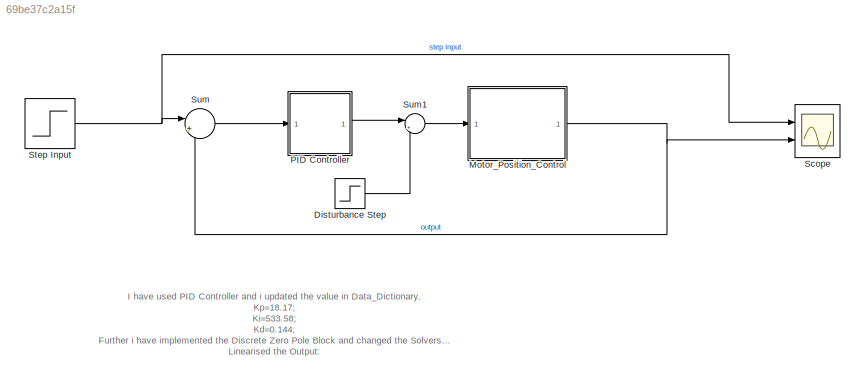
MODEL slx_69be37c2a15f
KIND model
CONFIG AbsTol = auto
CONFIG EnableMultiTasking = off
CONFIG FixedStep = auto
CONFIG MaxStep = auto
CONFIG MinStep = auto
CONFIG PreLoadFcn = J=3.2284E-6;\nb=3.5077E-6;\nK=0.0274;\nR=4;\nL=2.75E-6;\n
CONFIG RelTol = 1e-3
CONFIG SampleTimeConstraint = Unconstrained
CONFIG SolverName = ode15s
CONFIG StartTime = 0.0
CONFIG StopTime = 0.2
BLOCK [Step]  Step Input
  SampleTime = 0
  Time = 0
BLOCK [Step] Disturbance Step
  SampleTime = 0
  Time = 0.01
BLOCK [ModelReference] Motor_Position_Control
  ModelNameDialog = Motor_Position_Control0
  ModelReferenceVersion = 1.7
  Ports = [1, 1]
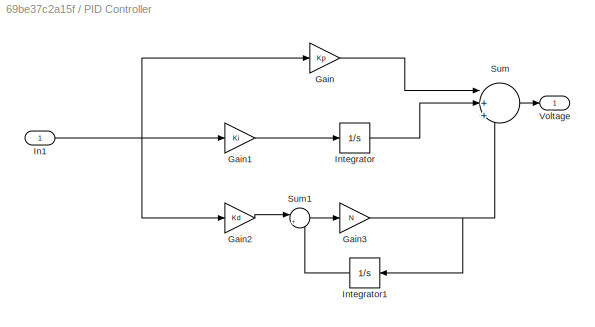
BLOCK [SubSystem] PID Controller
  Ports = [1, 1]
  RequestExecContextInheritance = off
BLOCK [Gain] PID Controller/Gain
  Gain = Kp
BLOCK [Gain] PID Controller/Gain1
  Gain = Ki
BLOCK [Gain] PID Controller/Gain2
  Gain = Kd
BLOCK [Gain] PID Controller/Gain3
  Gain = N
BLOCK [Inport] PID Controller/In1
BLOCK [Integrator] PID Controller/Integrator
  Ports = [1, 1]
BLOCK [Integrator] PID Controller/Integrator1
  Ports = [1, 1]
BLOCK [Sum] PID Controller/Sum
  Inputs = |+++
  Ports = [3, 1]
BLOCK [Sum] PID Controller/Sum1
  Inputs = |+-
  Ports = [2, 1]
BLOCK [Outport] PID Controller/Voltage
BLOCK [Scope] Scope
  Floating = off
  NumInputPorts = 2
  Ports = [2]
  ScopeSpecificationString = Simulink.scopes.TimeScopeBlockCfg('CurrentConfiguration', extmgr.ConfigurationSet(extmgr.Configuration('Core','General UI',true),extmgr.Configuration('Core','Source UI',true),extmgr.Configuration('Sources','WiredSimulink',true,'DataLoggingSaveFormat','Array','DataLoggingLimitDataPoints',true,'DataLoggingDecimation','1'),extmgr.Configuration('Visuals','Time Domain',true,'SerializedDisplays',{struct...<+2407ch>
BLOCK [Sum] Sum
  Inputs = |+-
  Ports = [2, 1]
BLOCK [Sum] Sum1
  Inputs = |++
  Ports = [2, 1]
ANNOTATION (root): I have used PID Controller and i updated the value in Data_Dictionary. Kp=18.17; Ki=533.58; Kd=0.144; Further i have implemented the Discrete Zero Pole Block and changed the Solvers to ode15s Linearised the Output: Settling Time is Less than 0.040, Overshoot is less than 16% No Seady state Error,even in presence of step input.
NET  Step Input:1 -> Scope:1, Sum:1
LINE Disturbance Step:1 -> Sum1:2
NET Motor_Position_Control:1 -> Scope:2, Sum:2
LINE PID Controller/Gain1:1 -> PID Controller/Integrator:1
LINE PID Controller/Gain2:1 -> PID Controller/Sum1:1
NET PID Controller/Gain3:1 -> PID Controller/Integrator1:1, PID Controller/Sum:3
LINE PID Controller/Gain:1 -> PID Controller/Sum:1
NET PID Controller/In1:1 -> PID Controller/Gain1:1, PID Controller/Gain2:1, PID Controller/Gain:1
LINE PID Controller/Integrator1:1 -> PID Controller/Sum1:2
LINE PID Controller/Integrator:1 -> PID Controller/Sum:2
LINE PID Controller/Sum1:1 -> PID Controller/Gain3:1
LINE PID Controller/Sum:1 -> PID Controller/Voltage:1
LINE PID Controller:1 -> Sum1:1
LINE Sum1:1 -> Motor_Position_Control:1
LINE Sum:1 -> PID Controller:1
note: NET lines group one-source signal fan-out (src -> all destinations, sorted); 1:1 wires keep LINE
